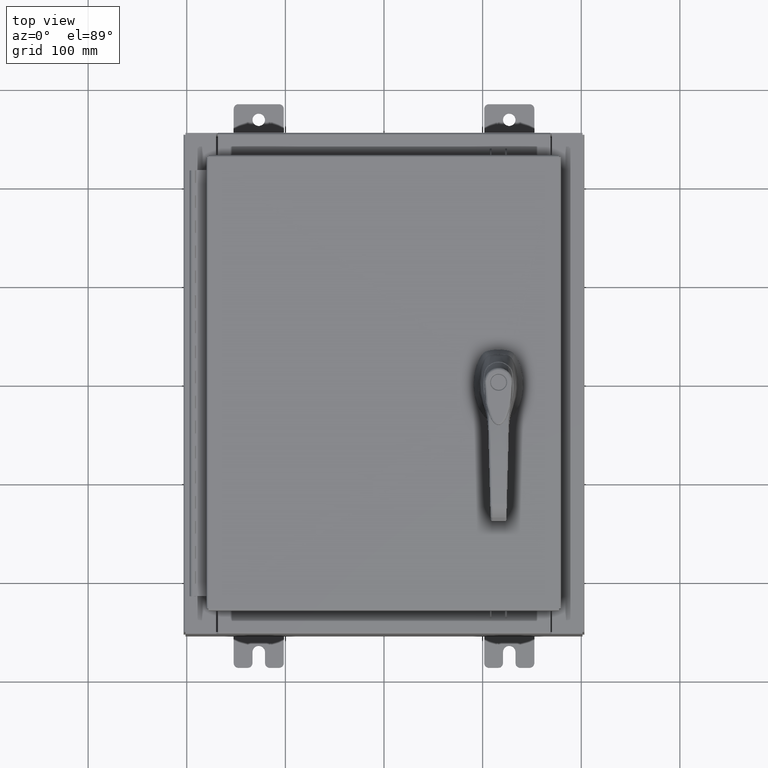
[diagram: clean part render]
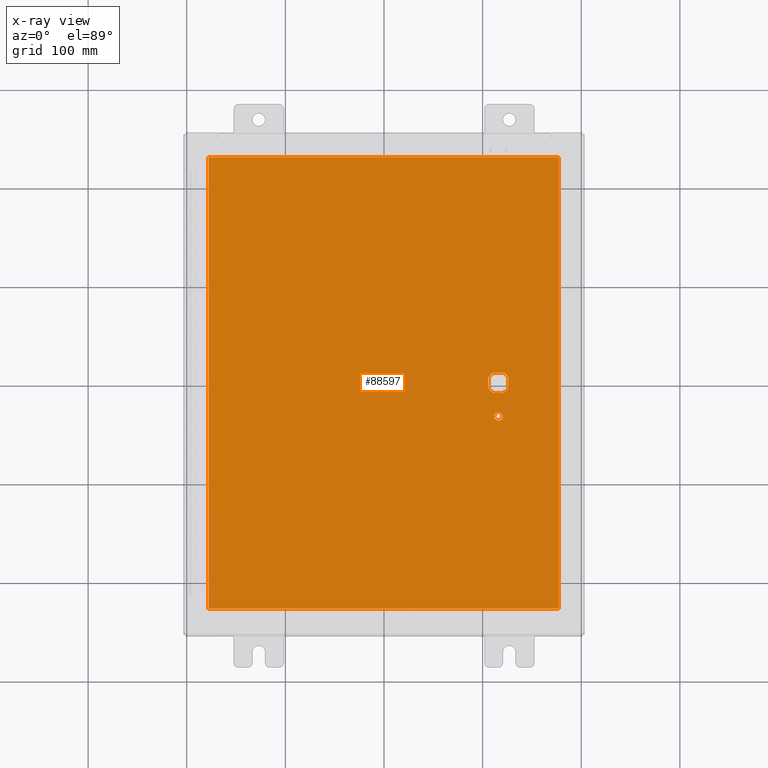
[diagram: x-ray — body ghosted, one internal face saturated and labeled with its STEP entity id]
A machine part, top view, then the same camera in x-ray: the body is ghosted and one INTERNAL B-rep face — a face not visible from any outside direction — is saturated and labeled: STEP entity #88597.
In plain terms, the highlighted planar face has unit normal (0, 0, -1).
Its self-contained STEP definition (entity closure, byte-faithful):
#2325 = DIRECTION ( 'NONE',  ( 0.0000000000000000000, 1.000000000000000000, 0.0000000000000000000 ) ) ;
#2508 = CARTESIAN_POINT ( 'NONE',  ( 4.578000000000002100, 0.0000000000000000000, -0.07470000000000003000 ) ) ;
#3194 = VERTEX_POINT ( 'NONE', #15084 ) ;
#3760 = AXIS2_PLACEMENT_3D ( 'NONE', #24157, #83872, #32744 ) ;
#4615 = CARTESIAN_POINT ( 'NONE',  ( -6.990299999999997700, 9.006300000000001300, -0.07470000000000019700 ) ) ;
#5739 = LINE ( 'NONE', #72576, #25760 ) ;
#5844 = VERTEX_POINT ( 'NONE', #103886 ) ;
#6420 = VERTEX_POINT ( 'NONE', #96261 ) ;
#7050 = CARTESIAN_POINT ( 'NONE',  ( 6.990300000000002200, 9.006300000000001300, -0.07470000000000076600 ) ) ;
#7290 = CARTESIAN_POINT ( 'NONE',  ( 0.0000000000000000000, 0.4029999999999252000, -0.07470000000000003000 ) ) ;
#9735 = EDGE_LOOP ( 'NONE', ( #62362, #101980, #87342, #14114 ) ) ;
#10279 = ORIENTED_EDGE ( 'NONE', *, *, #98842, .T. ) ;
#11115 = DIRECTION ( 'NONE',  ( -1.000000000000000000, 0.0000000000000000000, 0.0000000000000000000 ) ) ;
#11333 = CARTESIAN_POINT ( 'NONE',  ( -6.990299999999997700, 9.006299999999999500, -0.07470000000000000300 ) ) ;
#11448 = EDGE_CURVE ( 'NONE', #72597, #55030, #5739, .T. ) ;
#11994 = CIRCLE ( 'NONE', #3760, 0.4499999999999156900 ) ;
#12182 = EDGE_CURVE ( 'NONE', #49864, #92286, #24324, .T. ) ;
#12573 = ORIENTED_EDGE ( 'NONE', *, *, #22617, .F. ) ;
#13365 = VECTOR ( 'NONE', #102959, 39.37007874015748100 ) ;
#14114 = ORIENTED_EDGE ( 'NONE', *, *, #80703, .F. ) ;
#15084 = CARTESIAN_POINT ( 'NONE',  ( 4.980999999999927900, -0.2002273707563080300, -0.07470000000000003000 ) ) ;
#16306 = EDGE_CURVE ( 'NONE', #55030, #110125, #26735, .T. ) ;
#18088 = CARTESIAN_POINT ( 'NONE',  ( 4.578000000000002100, 0.0000000000000000000, -0.07470000000000003000 ) ) ;
#22617 = EDGE_CURVE ( 'NONE', #99697, #3194, #35309, .T. ) ;
#24157 = CARTESIAN_POINT ( 'NONE',  ( 4.578000000000002100, 0.0000000000000000000, -0.07470000000000003000 ) ) ;
#24324 = LINE ( 'NONE', #72706, #87109 ) ;
#25015 = VERTEX_POINT ( 'NONE', #11333 ) ;
#25760 = VECTOR ( 'NONE', #67527, 39.37007874015748100 ) ;
#26653 = DIRECTION ( 'NONE',  ( -1.000000000000000000, 0.0000000000000000000, 0.0000000000000000000 ) ) ;
#26735 = CIRCLE ( 'NONE', #38909, 0.4499999999999156900 ) ;
#26883 = DIRECTION ( 'NONE',  ( -0.0000000000000000000, -0.0000000000000000000, 1.000000000000000000 ) ) ;
#29770 = ORIENTED_EDGE ( 'NONE', *, *, #31762, .T. ) ;
#31762 = EDGE_CURVE ( 'NONE', #99697, #107143, #11994, .T. ) ;
#31980 = DIRECTION ( 'NONE',  ( -0.0000000000000000000, -0.0000000000000000000, 1.000000000000000000 ) ) ;
#32036 = EDGE_CURVE ( 'NONE', #95115, #3194, #44000, .T. ) ;
#32744 = DIRECTION ( 'NONE',  ( -1.000000000000000000, 0.0000000000000000000, 0.0000000000000000000 ) ) ;
#33917 = EDGE_CURVE ( 'NONE', #102991, #5844, #89180, .T. ) ;
#34087 = DIRECTION ( 'NONE',  ( 0.0000000000000000000, -1.000000000000000000, 0.0000000000000000000 ) ) ;
#34215 = CARTESIAN_POINT ( 'NONE',  ( 4.578000000000002100, 0.0000000000000000000, -0.07470000000000003000 ) ) ;
#34769 = DIRECTION ( 'NONE',  ( 0.0000000000000000000, 0.0000000000000000000, -1.000000000000000000 ) ) ;
#35309 = LINE ( 'NONE', #59875, #92715 ) ;
#35559 = EDGE_CURVE ( 'NONE', #78004, #49864, #102421, .T. ) ;
#38909 = AXIS2_PLACEMENT_3D ( 'NONE', #34215, #93973, #42831 ) ;
#40302 = AXIS2_PLACEMENT_3D ( 'NONE', #18088, #77810, #26653 ) ;
#40473 = CARTESIAN_POINT ( 'NONE',  ( 4.175000000000076200, -0.2002273707563079800, -0.07470000000000003000 ) ) ;
#42046 = DIRECTION ( 'NONE',  ( 1.000000000000000000, -0.0000000000000000000, -0.0000000000000000000 ) ) ;
#42831 = DIRECTION ( 'NONE',  ( -1.000000000000000000, 8.881784197001256300E-016, 0.0000000000000000000 ) ) ;
#43216 = CARTESIAN_POINT ( 'NONE',  ( 0.0000000000000000000, -0.4029999999999252000, -0.07470000000000003000 ) ) ;
#44000 = CIRCLE ( 'NONE', #49463, 0.4499999999999156900 ) ;
#45225 = FACE_OUTER_BOUND ( 'NONE', #9735, .T. ) ;
#45711 = ORIENTED_EDGE ( 'NONE', *, *, #33917, .T. ) ;
#47054 = ORIENTED_EDGE ( 'NONE', *, *, #51505, .T. ) ;
#47338 = AXIS2_PLACEMENT_3D ( 'NONE', #51553, #34769, #94506 ) ;
#48813 = LINE ( 'NONE', #7050, #66218 ) ;
#49463 = AXIS2_PLACEMENT_3D ( 'NONE', #2508, #62222, #11115 ) ;
#49864 = VERTEX_POINT ( 'NONE', #100313 ) ;
#51488 = CARTESIAN_POINT ( 'NONE',  ( 4.377772629243692900, -0.4029999999999250300, -0.07470000000000003000 ) ) ;
#51505 = EDGE_CURVE ( 'NONE', #6420, #72597, #108275, .T. ) ;
#51553 = CARTESIAN_POINT ( 'NONE',  ( 0.0000000000000000000, 0.0000000000000000000, -0.07470000000000000300 ) ) ;
#55030 = VERTEX_POINT ( 'NONE', #40473 ) ;
#55067 = VECTOR ( 'NONE', #64304, 39.37007874015748100 ) ;
#55297 = CARTESIAN_POINT ( 'NONE',  ( 4.406500000000002100, -1.338000000000000100, -0.07470000000000003000 ) ) ;
#56047 = LINE ( 'NONE', #43216, #13365 ) ;
#56948 = VECTOR ( 'NONE', #42046, 39.37007874015748100 ) ;
#58182 = CIRCLE ( 'NONE', #82234, 0.1715000000000000700 ) ;
#58366 = DIRECTION ( 'NONE',  ( -1.000000000000000000, 0.0000000000000000000, 0.0000000000000000000 ) ) ;
#59476 = ORIENTED_EDGE ( 'NONE', *, *, #11448, .T. ) ;
#59875 = CARTESIAN_POINT ( 'NONE',  ( 4.980999999999927900, 0.0000000000000000000, -0.07470000000000003000 ) ) ;
#60242 = CARTESIAN_POINT ( 'NONE',  ( -6.990299999999996800, -9.006299999999997800, -0.07470000000000000300 ) ) ;
#62222 = DIRECTION ( 'NONE',  ( -0.0000000000000000000, -0.0000000000000000000, 1.000000000000000000 ) ) ;
#62362 = ORIENTED_EDGE ( 'NONE', *, *, #12182, .F. ) ;
#62643 = CARTESIAN_POINT ( 'NONE',  ( 4.778227370756312100, -0.4029999999999252000, -0.07470000000000003000 ) ) ;
#64304 = DIRECTION ( 'NONE',  ( 0.0000000000000000000, -1.000000000000000000, 0.0000000000000000000 ) ) ;
#66218 = VECTOR ( 'NONE', #66716, 39.37007874015748100 ) ;
#66716 = DIRECTION ( 'NONE',  ( -1.000000000000000000, -0.0000000000000000000, -0.0000000000000000000 ) ) ;
#67527 = DIRECTION ( 'NONE',  ( 0.0000000000000000000, -1.000000000000000000, 0.0000000000000000000 ) ) ;
#72576 = CARTESIAN_POINT ( 'NONE',  ( 4.175000000000076200, 0.0000000000000000000, -0.07470000000000003000 ) ) ;
#72597 = VERTEX_POINT ( 'NONE', #110159 ) ;
#72706 = CARTESIAN_POINT ( 'NONE',  ( 6.990300000000002200, -9.006299999999997800, -0.07470000000000021100 ) ) ;
#73638 = VECTOR ( 'NONE', #58366, 39.37007874015748100 ) ;
#77757 = ORIENTED_EDGE ( 'NONE', *, *, #16306, .T. ) ;
#77810 = DIRECTION ( 'NONE',  ( -0.0000000000000000000, -0.0000000000000000000, 1.000000000000000000 ) ) ;
#78004 = VERTEX_POINT ( 'NONE', #60242 ) ;
#78043 = CARTESIAN_POINT ( 'NONE',  ( 4.578000000000002100, -1.338000000000000100, -0.07470000000000003000 ) ) ;
#80703 = EDGE_CURVE ( 'NONE', #92286, #25015, #48813, .T. ) ;
#82141 = CARTESIAN_POINT ( 'NONE',  ( 4.980999999999927900, 0.2002273707563080300, -0.07470000000000003000 ) ) ;
#82234 = AXIS2_PLACEMENT_3D ( 'NONE', #83138, #31980, #91712 ) ;
#82692 = ORIENTED_EDGE ( 'NONE', *, *, #107249, .T. ) ;
#83138 = CARTESIAN_POINT ( 'NONE',  ( 4.578000000000002100, -1.338000000000000100, -0.07470000000000003000 ) ) ;
#83872 = DIRECTION ( 'NONE',  ( -0.0000000000000000000, -0.0000000000000000000, 1.000000000000000000 ) ) ;
#85923 = PLANE ( 'NONE',  #47338 ) ;
#86585 = DIRECTION ( 'NONE',  ( -1.000000000000000000, 0.0000000000000000000, 0.0000000000000000000 ) ) ;
#86653 = EDGE_LOOP ( 'NONE', ( #10279, #45711 ) ) ;
#86770 = AXIS2_PLACEMENT_3D ( 'NONE', #78043, #26883, #86585 ) ;
#87109 = VECTOR ( 'NONE', #2325, 39.37007874015748100 ) ;
#87342 = ORIENTED_EDGE ( 'NONE', *, *, #103947, .F. ) ;
#88597 = ADVANCED_FACE ( 'NONE', ( #110735, #45225, #90633 ), #85923, .T. ) ;
#89180 = CIRCLE ( 'NONE', #86770, 0.1715000000000000700 ) ;
#90633 = FACE_BOUND ( 'NONE', #105342, .T. ) ;
#91712 = DIRECTION ( 'NONE',  ( -1.000000000000000000, 0.0000000000000000000, 0.0000000000000000000 ) ) ;
#91736 = CARTESIAN_POINT ( 'NONE',  ( 6.990300000000001300, 9.006300000000001300, -0.07470000000000000300 ) ) ;
#92286 = VERTEX_POINT ( 'NONE', #91736 ) ;
#92715 = VECTOR ( 'NONE', #34087, 39.37007874015748100 ) ;
#93973 = DIRECTION ( 'NONE',  ( -0.0000000000000000000, -0.0000000000000000000, 1.000000000000000000 ) ) ;
#94506 = DIRECTION ( 'NONE',  ( -1.000000000000000000, 0.0000000000000000000, -0.0000000000000000000 ) ) ;
#95115 = VERTEX_POINT ( 'NONE', #62643 ) ;
#96261 = CARTESIAN_POINT ( 'NONE',  ( 4.377772629243692900, 0.4029999999999252000, -0.07470000000000003000 ) ) ;
#96360 = LINE ( 'NONE', #7290, #73638 ) ;
#97926 = ORIENTED_EDGE ( 'NONE', *, *, #32036, .T. ) ;
#98842 = EDGE_CURVE ( 'NONE', #5844, #102991, #58182, .T. ) ;
#99697 = VERTEX_POINT ( 'NONE', #82141 ) ;
#100313 = CARTESIAN_POINT ( 'NONE',  ( 6.990300000000002200, -9.006299999999997800, -0.07470000000000000300 ) ) ;
#100579 = LINE ( 'NONE', #4615, #55067 ) ;
#101861 = CARTESIAN_POINT ( 'NONE',  ( 4.778227370756312100, 0.4029999999999250300, -0.07470000000000003000 ) ) ;
#101980 = ORIENTED_EDGE ( 'NONE', *, *, #35559, .F. ) ;
#102421 = LINE ( 'NONE', #110401, #56948 ) ;
#102959 = DIRECTION ( 'NONE',  ( 1.000000000000000000, 0.0000000000000000000, 0.0000000000000000000 ) ) ;
#102991 = VERTEX_POINT ( 'NONE', #55297 ) ;
#103886 = CARTESIAN_POINT ( 'NONE',  ( 4.749500000000002100, -1.338000000000000100, -0.07470000000000003000 ) ) ;
#103947 = EDGE_CURVE ( 'NONE', #25015, #78004, #100579, .T. ) ;
#105342 = EDGE_LOOP ( 'NONE', ( #97926, #12573, #29770, #106508, #47054, #59476, #77757, #82692 ) ) ;
#105571 = EDGE_CURVE ( 'NONE', #107143, #6420, #96360, .T. ) ;
#106508 = ORIENTED_EDGE ( 'NONE', *, *, #105571, .T. ) ;
#107143 = VERTEX_POINT ( 'NONE', #101861 ) ;
#107249 = EDGE_CURVE ( 'NONE', #110125, #95115, #56047, .T. ) ;
#108275 = CIRCLE ( 'NONE', #40302, 0.4499999999999156900 ) ;
#110125 = VERTEX_POINT ( 'NONE', #51488 ) ;
#110159 = CARTESIAN_POINT ( 'NONE',  ( 4.175000000000076200, 0.2002273707563080300, -0.07470000000000003000 ) ) ;
#110401 = CARTESIAN_POINT ( 'NONE',  ( -6.990299999999997700, -9.006299999999997800, -0.07470000000000021100 ) ) ;
#110735 = FACE_BOUND ( 'NONE', #86653, .T. ) ;